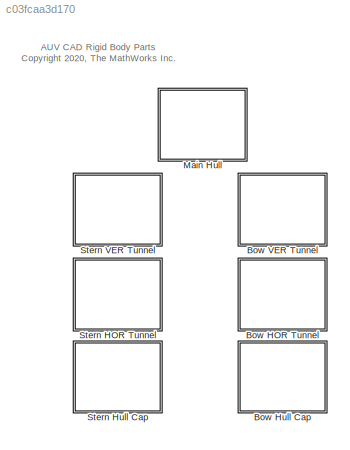
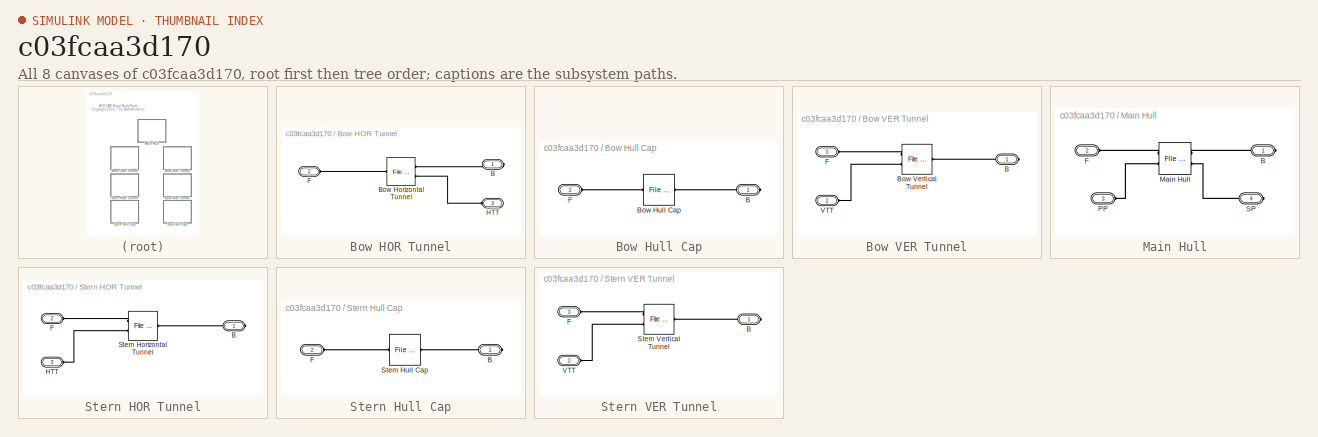
[diagram: thumbnail index - all 8 canvases of the model, root first then tree order]
MODEL slx_c03fcaa3d170
KIND library
CONFIG AbsTol = auto
CONFIG EnableMultiTasking = off
CONFIG FixedStep = auto
CONFIG MaxStep = auto
CONFIG MinStep = auto
CONFIG RelTol = 1e-3
CONFIG SampleTimeConstraint = Unconstrained
CONFIG Solver = VariableStepAuto
CONFIG SolverName = VariableStepAuto
CONFIG StartTime = 0.0
CONFIG StopTime = 10.0
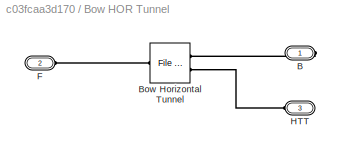
BLOCK [SubSystem] Bow HOR Tunnel
  Ports = [0, 0, 0, 0, 0, 2, 1]
  RequestExecContextInheritance = off
BLOCK [PMIOPort] Bow HOR Tunnel/B
  Side = Right
BLOCK [Reference] Bow HOR Tunnel/Bow Horizontal Tunnel  REF=sm_lib/Body Elements/File Solid
  Ports = [0, 0, 0, 0, 0, 2, 1]
  SourceBlock = sm_lib/Body Elements/File Solid
  SourceProductBaseCode = MS
  SourceType = File Solid
BLOCK [PMIOPort] Bow HOR Tunnel/F
  Port = 2
  Side = Left
BLOCK [PMIOPort] Bow HOR Tunnel/HTT
  Port = 3
  Side = Left
BLOCK [SubSystem] Bow Hull Cap
  Ports = [0, 0, 0, 0, 0, 1, 1]
  RequestExecContextInheritance = off
BLOCK [PMIOPort] Bow Hull Cap/B
  Side = Right
BLOCK [Reference] Bow Hull Cap/Bow Hull Cap  REF=sm_lib/Body Elements/File Solid
  Ports = [0, 0, 0, 0, 0, 1, 1]
  SourceBlock = sm_lib/Body Elements/File Solid
  SourceProductBaseCode = MS
  SourceType = File Solid
BLOCK [PMIOPort] Bow Hull Cap/F
  Port = 2
  Side = Left
BLOCK [SubSystem] Bow VER Tunnel
  Ports = [0, 0, 0, 0, 0, 2, 1]
  RequestExecContextInheritance = off
BLOCK [PMIOPort] Bow VER Tunnel/B
  Side = Right
BLOCK [Reference] Bow VER Tunnel/Bow Vertical Tunnel  REF=sm_lib/Body Elements/File Solid
  Ports = [0, 0, 0, 0, 0, 2, 1]
  SourceBlock = sm_lib/Body Elements/File Solid
  SourceProductBaseCode = MS
  SourceType = File Solid
BLOCK [PMIOPort] Bow VER Tunnel/F
  Port = 3
  Side = Left
BLOCK [PMIOPort] Bow VER Tunnel/VTT
  Port = 2
  Side = Left
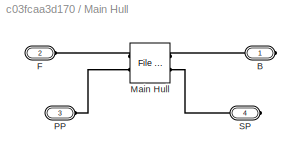
BLOCK [SubSystem] Main Hull
  Ports = [0, 0, 0, 0, 0, 2, 2]
  RequestExecContextInheritance = off
BLOCK [PMIOPort] Main Hull/B
  Side = Right
BLOCK [PMIOPort] Main Hull/F
  Port = 2
  Side = Left
BLOCK [Reference] Main Hull/Main Hull  REF=sm_lib/Body Elements/File Solid
  Ports = [0, 0, 0, 0, 0, 2, 2]
  SourceBlock = sm_lib/Body Elements/File Solid
  SourceProductBaseCode = MS
  SourceType = File Solid
BLOCK [PMIOPort] Main Hull/PP
  Port = 3
  Side = Left
BLOCK [PMIOPort] Main Hull/SP
  Port = 4
  Side = Right
BLOCK [SubSystem] Stern HOR Tunnel
  Ports = [0, 0, 0, 0, 0, 2, 1]
  RequestExecContextInheritance = off
BLOCK [PMIOPort] Stern HOR Tunnel/B
  Side = Right
BLOCK [PMIOPort] Stern HOR Tunnel/F
  Port = 2
  Side = Left
BLOCK [PMIOPort] Stern HOR Tunnel/HTT
  Port = 3
  Side = Left
BLOCK [Reference] Stern HOR Tunnel/Stern Horizontal Tunnel  REF=sm_lib/Body Elements/File Solid
  Ports = [0, 0, 0, 0, 0, 2, 1]
  SourceBlock = sm_lib/Body Elements/File Solid
  SourceProductBaseCode = MS
  SourceType = File Solid
BLOCK [SubSystem] Stern Hull Cap
  Ports = [0, 0, 0, 0, 0, 1, 1]
  RequestExecContextInheritance = off
BLOCK [PMIOPort] Stern Hull Cap/B
  Side = Right
BLOCK [PMIOPort] Stern Hull Cap/F
  Port = 2
  Side = Left
BLOCK [Reference] Stern Hull Cap/Stern Hull Cap  REF=sm_lib/Body Elements/File Solid
  Ports = [0, 0, 0, 0, 0, 1, 1]
  SourceBlock = sm_lib/Body Elements/File Solid
  SourceProductBaseCode = MS
  SourceType = File Solid
BLOCK [SubSystem] Stern VER Tunnel
  Ports = [0, 0, 0, 0, 0, 2, 1]
  RequestExecContextInheritance = off
BLOCK [PMIOPort] Stern VER Tunnel/B
  Side = Right
BLOCK [PMIOPort] Stern VER Tunnel/F
  Port = 3
  Side = Left
BLOCK [Reference] Stern VER Tunnel/Stern Vertical Tunnel  REF=sm_lib/Body Elements/File Solid
  Ports = [0, 0, 0, 0, 0, 2, 1]
  SourceBlock = sm_lib/Body Elements/File Solid
  SourceProductBaseCode = MS
  SourceType = File Solid
BLOCK [PMIOPort] Stern VER Tunnel/VTT
  Port = 2
  Side = Left
ANNOTATION (root): AUV CAD Rigid Body Parts <copyright redacted>
PLINE Bow HOR Tunnel/B:RConn1 -- Bow HOR Tunnel/Bow Horizontal Tunnel:LConn1
PLINE Bow HOR Tunnel/Bow Horizontal Tunnel:LConn2 -- Bow HOR Tunnel/HTT:RConn1
PLINE Bow HOR Tunnel/Bow Horizontal Tunnel:RConn1 -- Bow HOR Tunnel/F:RConn1
PLINE Bow Hull Cap/B:RConn1 -- Bow Hull Cap/Bow Hull Cap:LConn1
PLINE Bow Hull Cap/Bow Hull Cap:RConn1 -- Bow Hull Cap/F:RConn1
PLINE Bow VER Tunnel/B:RConn1 -- Bow VER Tunnel/Bow Vertical Tunnel:RConn1
PLINE Bow VER Tunnel/Bow Vertical Tunnel:LConn1 -- Bow VER Tunnel/F:RConn1
PLINE Bow VER Tunnel/Bow Vertical Tunnel:LConn2 -- Bow VER Tunnel/VTT:RConn1
PLINE Main Hull/B:RConn1 -- Main Hull/Main Hull:RConn1
PLINE Main Hull/F:RConn1 -- Main Hull/Main Hull:LConn1
PLINE Main Hull/Main Hull:LConn2 -- Main Hull/PP:RConn1
PLINE Main Hull/Main Hull:RConn2 -- Main Hull/SP:RConn1
PLINE Stern HOR Tunnel/B:RConn1 -- Stern HOR Tunnel/Stern Horizontal Tunnel:RConn1
PLINE Stern HOR Tunnel/F:RConn1 -- Stern HOR Tunnel/Stern Horizontal Tunnel:LConn1
PLINE Stern HOR Tunnel/HTT:RConn1 -- Stern HOR Tunnel/Stern Horizontal Tunnel:LConn2
PLINE Stern Hull Cap/B:RConn1 -- Stern Hull Cap/Stern Hull Cap:LConn1
PLINE Stern Hull Cap/F:RConn1 -- Stern Hull Cap/Stern Hull Cap:RConn1
PLINE Stern VER Tunnel/B:RConn1 -- Stern VER Tunnel/Stern Vertical Tunnel:RConn1
PLINE Stern VER Tunnel/F:RConn1 -- Stern VER Tunnel/Stern Vertical Tunnel:LConn1
PLINE Stern VER Tunnel/Stern Vertical Tunnel:LConn2 -- Stern VER Tunnel/VTT:RConn1
